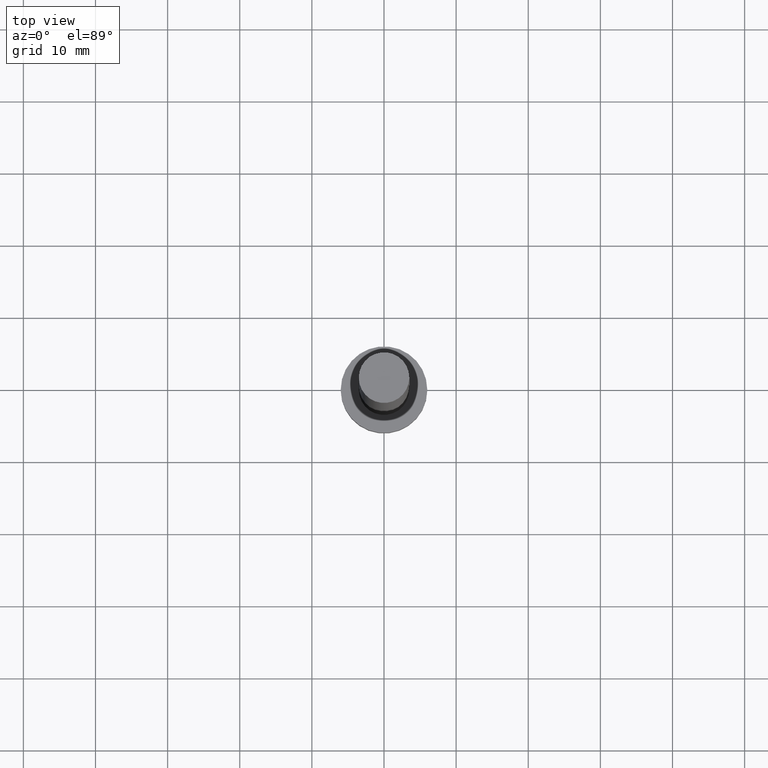
[diagram: clean part render]
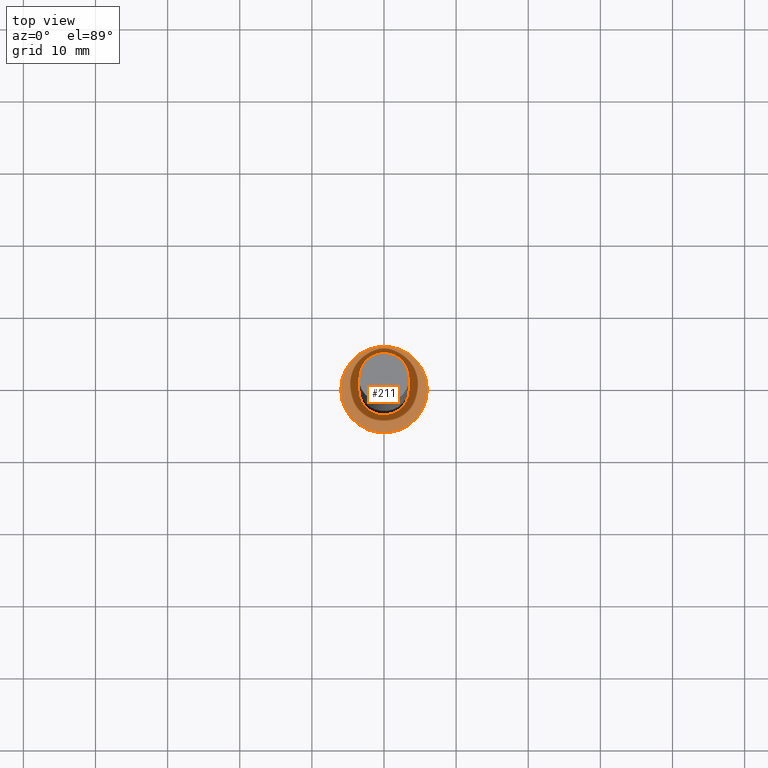
[diagram: same view with one face highlighted and labeled with its STEP entity id]
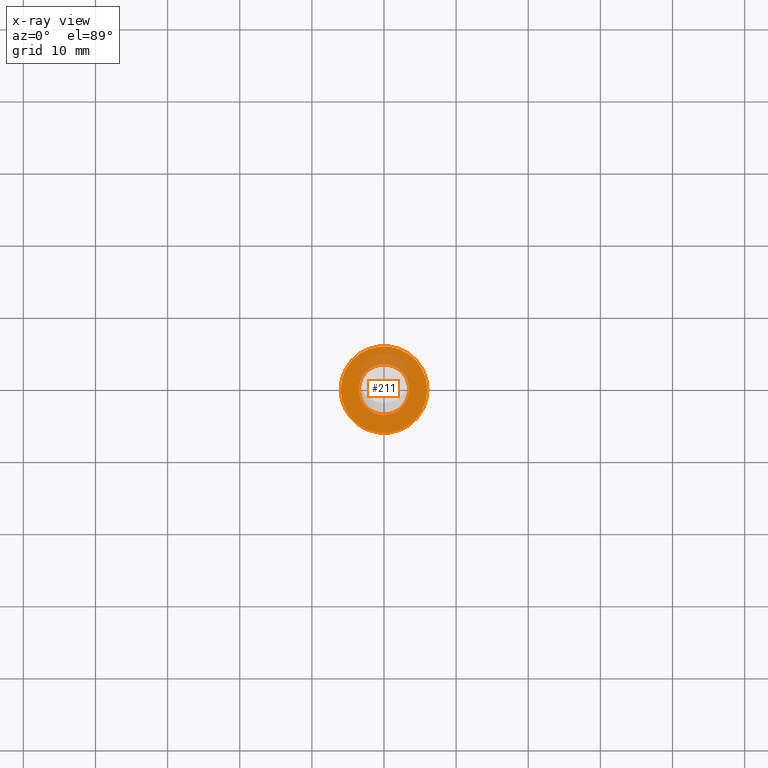
[diagram: x-ray of the same camera — body ghosted, the highlighted face saturated]
A machine part, top view. The second image highlights one B-rep face of the part: STEP entity #211.
The next image is the same camera in x-ray: the body ghosted, the highlighted face saturated — about 16% of this face is hidden behind the body in this view.
In plain terms, the highlighted planar face has unit normal (0, 0, 1).
Its self-contained STEP definition (entity closure, byte-faithful):
#4 = AXIS2_PLACEMENT_3D ( 'NONE', #9, #80, #176 ) ;
#7 = EDGE_LOOP ( 'NONE', ( #102, #42 ) ) ;
#9 = CARTESIAN_POINT ( 'NONE',  ( 0.000000000000000000, 0.000000000000000000, 5.000000000000000000 ) ) ;
#18 = VERTEX_POINT ( 'NONE', #170 ) ;
#28 = ORIENTED_EDGE ( 'NONE', *, *, #110, .F. ) ;
#31 = EDGE_CURVE ( 'NONE', #18, #154, #45, .T. ) ;
#42 = ORIENTED_EDGE ( 'NONE', *, *, #213, .T. ) ;
#45 = CIRCLE ( 'NONE', #188, 6.000000000000000888 ) ;
#48 = CARTESIAN_POINT ( 'NONE',  ( 0.000000000000000000, 0.000000000000000000, 5.000000000000000000 ) ) ;
#53 = CIRCLE ( 'NONE', #198, 3.500000000000000000 ) ;
#57 = CARTESIAN_POINT ( 'NONE',  ( 6.000000000000000888, 7.347880794884120722E-16, 5.000000000000000000 ) ) ;
#61 = VERTEX_POINT ( 'NONE', #156 ) ;
#72 = EDGE_CURVE ( 'NONE', #223, #61, #99, .T. ) ;
#79 = CARTESIAN_POINT ( 'NONE',  ( 0.000000000000000000, 0.000000000000000000, 5.000000000000000000 ) ) ;
#80 = DIRECTION ( 'NONE',  ( 0.000000000000000000, 0.000000000000000000, 1.000000000000000000 ) ) ;
#87 = DIRECTION ( 'NONE',  ( 1.000000000000000000, 0.000000000000000000, 0.000000000000000000 ) ) ;
#91 = DIRECTION ( 'NONE',  ( 1.000000000000000000, 0.000000000000000000, 0.000000000000000000 ) ) ;
#95 = FACE_BOUND ( 'NONE', #255, .T. ) ;
#99 = CIRCLE ( 'NONE', #167, 3.500000000000000000 ) ;
#102 = ORIENTED_EDGE ( 'NONE', *, *, #31, .T. ) ;
#110 = EDGE_CURVE ( 'NONE', #61, #223, #53, .T. ) ;
#115 = AXIS2_PLACEMENT_3D ( 'NONE', #79, #160, #161 ) ;
#128 = DIRECTION ( 'NONE',  ( 0.000000000000000000, 0.000000000000000000, 1.000000000000000000 ) ) ;
#139 = FACE_OUTER_BOUND ( 'NONE', #7, .T. ) ;
#152 = CIRCLE ( 'NONE', #4, 6.000000000000000888 ) ;
#153 = ORIENTED_EDGE ( 'NONE', *, *, #72, .F. ) ;
#154 = VERTEX_POINT ( 'NONE', #57 ) ;
#156 = CARTESIAN_POINT ( 'NONE',  ( 3.500000000000000000, 4.286263797015736595E-16, 5.000000000000000000 ) ) ;
#160 = DIRECTION ( 'NONE',  ( 0.000000000000000000, 0.000000000000000000, 1.000000000000000000 ) ) ;
#161 = DIRECTION ( 'NONE',  ( 1.000000000000000000, 0.000000000000000000, -0.000000000000000000 ) ) ;
#167 = AXIS2_PLACEMENT_3D ( 'NONE', #208, #128, #91 ) ;
#168 = DIRECTION ( 'NONE',  ( 1.000000000000000000, 0.000000000000000000, 0.000000000000000000 ) ) ;
#170 = CARTESIAN_POINT ( 'NONE',  ( -6.000000000000000888, 0.000000000000000000, 5.000000000000000000 ) ) ;
#176 = DIRECTION ( 'NONE',  ( 1.000000000000000000, 0.000000000000000000, 0.000000000000000000 ) ) ;
#179 = PLANE ( 'NONE',  #115 ) ;
#188 = AXIS2_PLACEMENT_3D ( 'NONE', #245, #206, #87 ) ;
#198 = AXIS2_PLACEMENT_3D ( 'NONE', #48, #202, #168 ) ;
#202 = DIRECTION ( 'NONE',  ( 0.000000000000000000, 0.000000000000000000, 1.000000000000000000 ) ) ;
#206 = DIRECTION ( 'NONE',  ( 0.000000000000000000, 0.000000000000000000, 1.000000000000000000 ) ) ;
#208 = CARTESIAN_POINT ( 'NONE',  ( 0.000000000000000000, 0.000000000000000000, 5.000000000000000000 ) ) ;
#211 = ADVANCED_FACE ( 'NONE', ( #95, #139 ), #179, .T. ) ;
#212 = CARTESIAN_POINT ( 'NONE',  ( -3.500000000000000000, 0.000000000000000000, 5.000000000000000000 ) ) ;
#213 = EDGE_CURVE ( 'NONE', #154, #18, #152, .T. ) ;
#223 = VERTEX_POINT ( 'NONE', #212 ) ;
#245 = CARTESIAN_POINT ( 'NONE',  ( 0.000000000000000000, 0.000000000000000000, 5.000000000000000000 ) ) ;
#255 = EDGE_LOOP ( 'NONE', ( #153, #28 ) ) ;